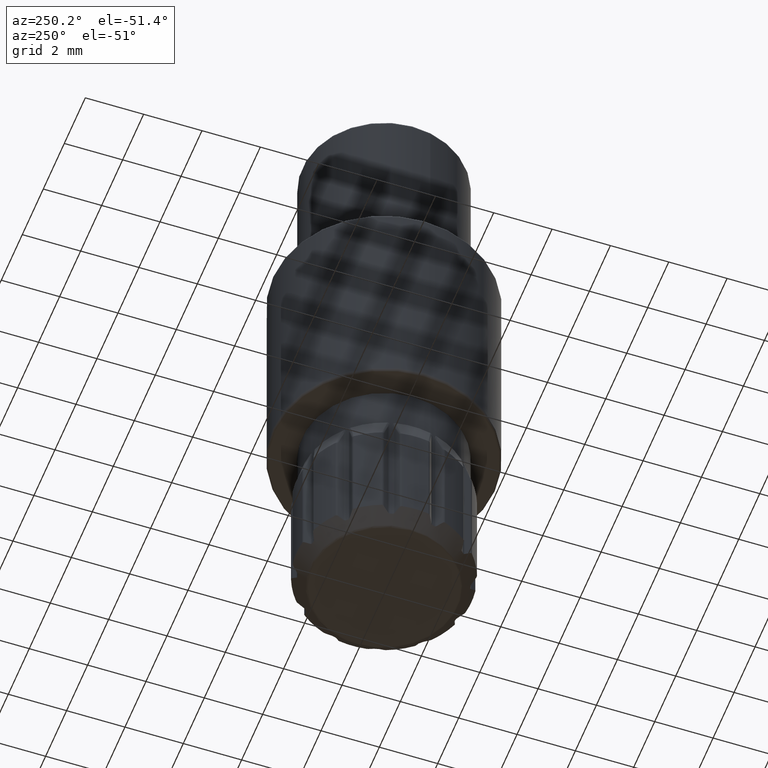
[diagram: clean part render]
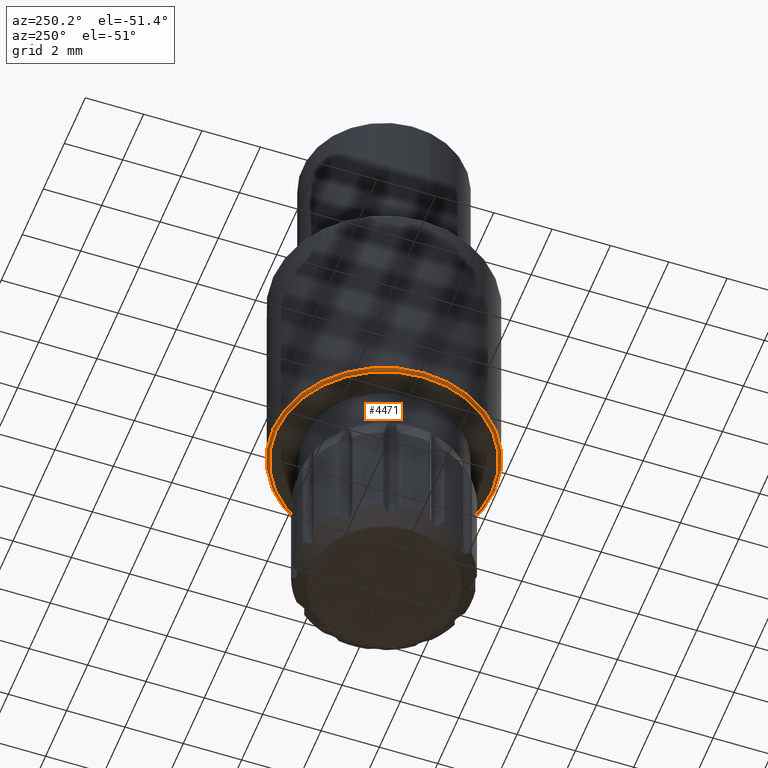
[diagram: same view with one face highlighted and labeled with its STEP entity id]
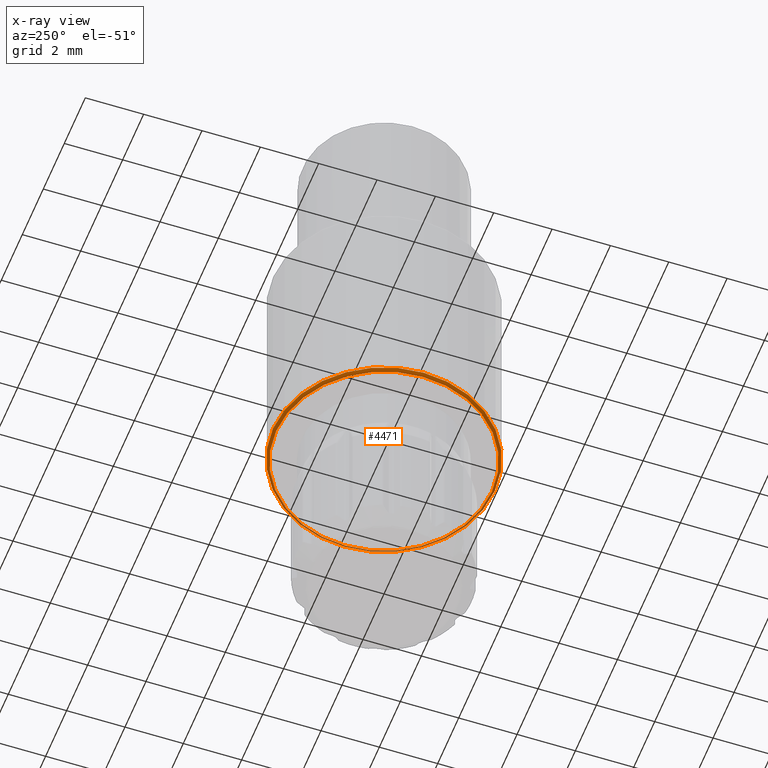
[diagram: x-ray of the same camera — body ghosted, the highlighted face saturated]
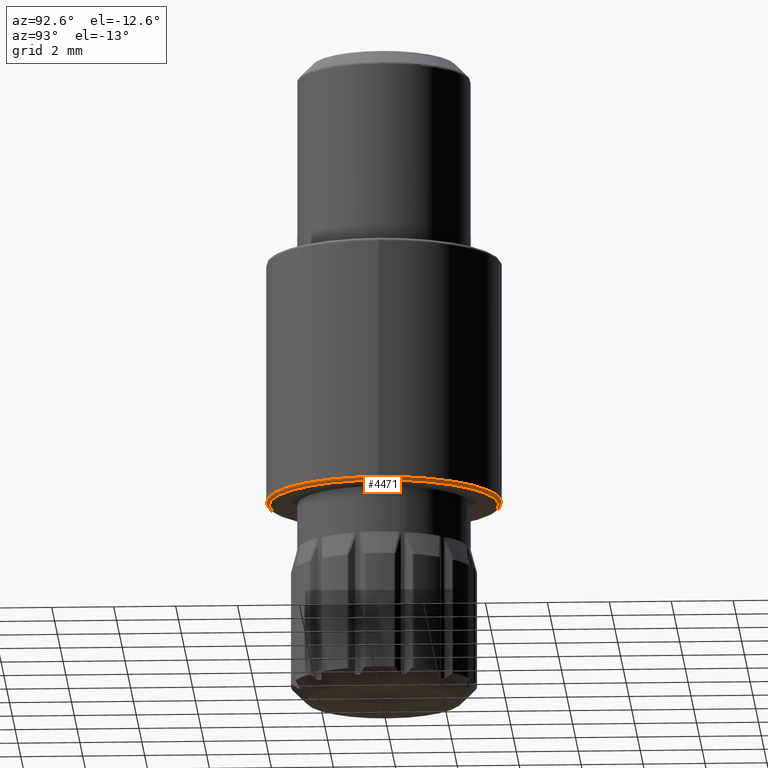
[diagram: same view with one face highlighted and labeled with its STEP entity id]
A machine part, auxiliary view. The second image highlights one B-rep face of the part: STEP entity #4471.
The next image is the same camera in x-ray: the body ghosted, the highlighted face saturated — about 15% of this face is hidden behind the body in this view.
A second angle (auxiliary view) of the same face is appended — the face is thin or edge-on in the first view.
In plain terms, the highlighted toroidal blend (fillet) surface has major radius 3.7 mm and minor (blend) radius 0.1 mm.
Its self-contained STEP definition (entity closure, byte-faithful):
#164 = CIRCLE ( 'NONE', #4845, 3.799999999999999822 ) ;
#472 = EDGE_CURVE ( 'NONE', #3636, #3636, #525, .T. ) ;
#525 = CIRCLE ( 'NONE', #6962, 3.700000000000000178 ) ;
#873 = ORIENTED_EDGE ( 'NONE', *, *, #472, .F. ) ;
#1702 = CARTESIAN_POINT ( 'NONE',  ( 3.700000000000000178, 0.000000000000000000, 0.000000000000000000 ) ) ;
#1974 = ORIENTED_EDGE ( 'NONE', *, *, #4747, .F. ) ;
#2011 = EDGE_LOOP ( 'NONE', ( #873 ) ) ;
#2084 = CARTESIAN_POINT ( 'NONE',  ( 0.000000000000000000, 0.000000000000000000, 0.09999999999999939493 ) ) ;
#2334 = CARTESIAN_POINT ( 'NONE',  ( 0.000000000000000000, 0.000000000000000000, 0.000000000000000000 ) ) ;
#2577 = DIRECTION ( 'NONE',  ( 1.000000000000000000, 0.000000000000000000, 0.000000000000000000 ) ) ;
#2657 = EDGE_LOOP ( 'NONE', ( #1974 ) ) ;
#3233 = DIRECTION ( 'NONE',  ( 1.000000000000000000, 0.000000000000000000, 0.000000000000000000 ) ) ;
#3487 = DIRECTION ( 'NONE',  ( 1.000000000000000000, 0.000000000000000000, 0.000000000000000000 ) ) ;
#3636 = VERTEX_POINT ( 'NONE', #1702 ) ;
#3669 = FACE_OUTER_BOUND ( 'NONE', #2011, .T. ) ;
#3706 = CARTESIAN_POINT ( 'NONE',  ( 0.000000000000000000, 0.000000000000000000, 0.09999999999999939493 ) ) ;
#3808 = AXIS2_PLACEMENT_3D ( 'NONE', #2084, #7208, #3233 ) ;
#4301 = DIRECTION ( 'NONE',  ( 0.000000000000000000, 0.000000000000000000, 1.000000000000000000 ) ) ;
#4462 = CARTESIAN_POINT ( 'NONE',  ( 3.799999999999999822, 0.000000000000000000, 0.09999999999999939493 ) ) ;
#4471 = ADVANCED_FACE ( 'NONE', ( #3669, #5412 ), #4487, .T. ) ;
#4487 = TOROIDAL_SURFACE ( 'NONE', #3808, 3.700000000000000178, 0.1000000000000000056 ) ;
#4747 = EDGE_CURVE ( 'NONE', #7372, #7372, #164, .T. ) ;
#4845 = AXIS2_PLACEMENT_3D ( 'NONE', #3706, #4301, #2577 ) ;
#5173 = DIRECTION ( 'NONE',  ( -0.000000000000000000, -0.000000000000000000, -1.000000000000000000 ) ) ;
#5412 = FACE_OUTER_BOUND ( 'NONE', #2657, .T. ) ;
#6962 = AXIS2_PLACEMENT_3D ( 'NONE', #2334, #5173, #3487 ) ;
#7208 = DIRECTION ( 'NONE',  ( 0.000000000000000000, 0.000000000000000000, 1.000000000000000000 ) ) ;
#7372 = VERTEX_POINT ( 'NONE', #4462 ) ;